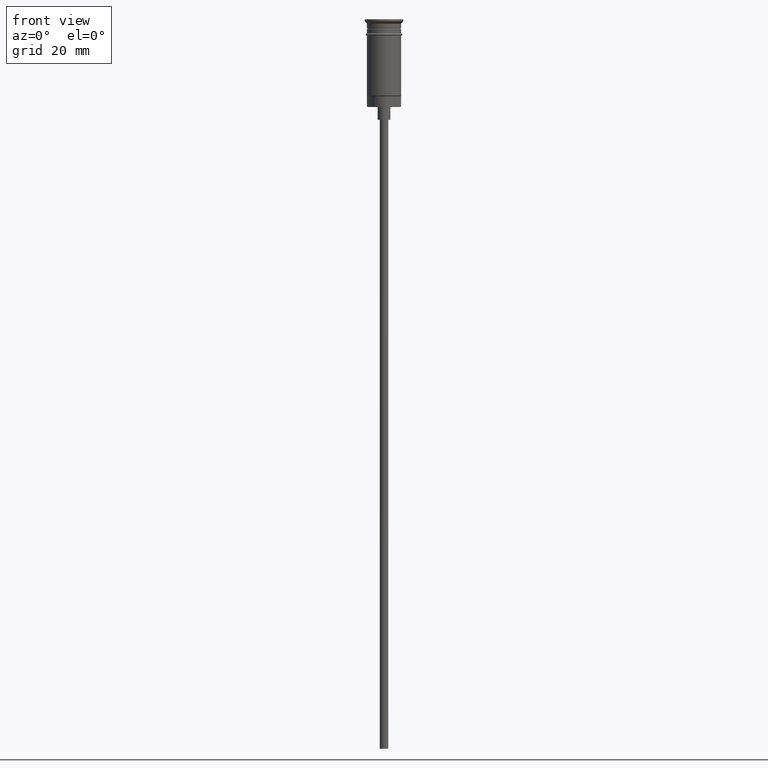
[diagram: clean part render]
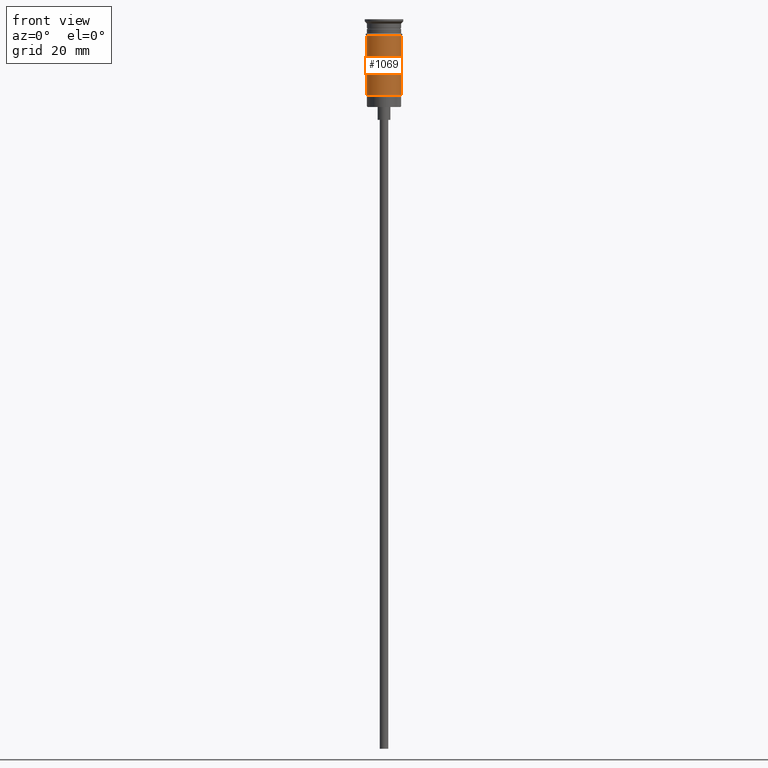
[diagram: same view with one face highlighted and labeled with its STEP entity id]
A machine part, front view. The second image highlights one B-rep face of the part: STEP entity #1069.
In plain terms, the highlighted cylindrical surface (edge-blend (fillet) strip) has radius 4 mm, axis along (-0, -0, 1).
Its self-contained STEP definition (entity closure, byte-faithful):
#43 = DIRECTION ( 'NONE',  ( -0.000000000000000000, -0.000000000000000000, 1.000000000000000000 ) ) ;
#80 = LINE ( 'NONE', #945, #462 ) ;
#162 = VERTEX_POINT ( 'NONE', #1162 ) ;
#234 = CIRCLE ( 'NONE', #964, 4.000000000000000000 ) ;
#267 = EDGE_CURVE ( 'NONE', #465, #666, #234, .T. ) ;
#462 = VECTOR ( 'NONE', #43, 1000.000000000000000 ) ;
#465 = VERTEX_POINT ( 'NONE', #1478 ) ;
#496 = CARTESIAN_POINT ( 'NONE',  ( 0.000000000000000000, 0.000000000000000000, 0.000000000000000000 ) ) ;
#548 = CIRCLE ( 'NONE', #1139, 4.000000000000000000 ) ;
#558 = ORIENTED_EDGE ( 'NONE', *, *, #267, .F. ) ;
#582 = CARTESIAN_POINT ( 'NONE',  ( 0.000000000000000000, 0.000000000000000000, -3.799999999999998490 ) ) ;
#625 = CYLINDRICAL_SURFACE ( 'NONE', #1496, 4.000000000000000000 ) ;
#666 = VERTEX_POINT ( 'NONE', #1316 ) ;
#716 = VERTEX_POINT ( 'NONE', #819 ) ;
#765 = EDGE_CURVE ( 'NONE', #162, #465, #80, .T. ) ;
#785 = ORIENTED_EDGE ( 'NONE', *, *, #1081, .T. ) ;
#801 = ORIENTED_EDGE ( 'NONE', *, *, #765, .F. ) ;
#819 = CARTESIAN_POINT ( 'NONE',  ( 4.000000000000000000, 4.898587196589412829E-16, -17.79999999999998295 ) ) ;
#833 = CARTESIAN_POINT ( 'NONE',  ( 4.000000000000000000, 0.000000000000000000, 0.000000000000000000 ) ) ;
#899 = DIRECTION ( 'NONE',  ( -0.000000000000000000, -0.000000000000000000, 1.000000000000000000 ) ) ;
#945 = CARTESIAN_POINT ( 'NONE',  ( -4.000000000000000000, 4.898587196589412829E-16, 0.000000000000000000 ) ) ;
#964 = AXIS2_PLACEMENT_3D ( 'NONE', #582, #1078, #1057 ) ;
#997 = CARTESIAN_POINT ( 'NONE',  ( 0.000000000000000000, 0.000000000000000000, -17.79999999999998295 ) ) ;
#1057 = DIRECTION ( 'NONE',  ( 1.000000000000000000, 0.000000000000000000, 0.000000000000000000 ) ) ;
#1058 = DIRECTION ( 'NONE',  ( -1.000000000000000000, 0.000000000000000000, 0.000000000000000000 ) ) ;
#1069 = ADVANCED_FACE ( 'NONE', ( #1245 ), #625, .T. ) ;
#1078 = DIRECTION ( 'NONE',  ( -0.000000000000000000, -0.000000000000000000, 1.000000000000000000 ) ) ;
#1081 = EDGE_CURVE ( 'NONE', #162, #716, #548, .T. ) ;
#1139 = AXIS2_PLACEMENT_3D ( 'NONE', #997, #1484, #1058 ) ;
#1162 = CARTESIAN_POINT ( 'NONE',  ( -3.999999999999997335, 0.000000000000000000, -17.79999999999998295 ) ) ;
#1245 = FACE_OUTER_BOUND ( 'NONE', #1389, .T. ) ;
#1250 = VECTOR ( 'NONE', #1459, 1000.000000000000000 ) ;
#1255 = EDGE_CURVE ( 'NONE', #716, #666, #1347, .T. ) ;
#1316 = CARTESIAN_POINT ( 'NONE',  ( 4.000000000000000000, 0.000000000000000000, -3.799999999999998490 ) ) ;
#1347 = LINE ( 'NONE', #833, #1250 ) ;
#1383 = DIRECTION ( 'NONE',  ( 1.000000000000000000, 0.000000000000000000, 0.000000000000000000 ) ) ;
#1389 = EDGE_LOOP ( 'NONE', ( #801, #785, #1530, #558 ) ) ;
#1459 = DIRECTION ( 'NONE',  ( -0.000000000000000000, -0.000000000000000000, 1.000000000000000000 ) ) ;
#1478 = CARTESIAN_POINT ( 'NONE',  ( -4.000000000000000000, 4.898587196589412829E-16, -3.799999999999998490 ) ) ;
#1484 = DIRECTION ( 'NONE',  ( -0.000000000000000000, -0.000000000000000000, 1.000000000000000000 ) ) ;
#1496 = AXIS2_PLACEMENT_3D ( 'NONE', #496, #899, #1383 ) ;
#1530 = ORIENTED_EDGE ( 'NONE', *, *, #1255, .T. ) ;